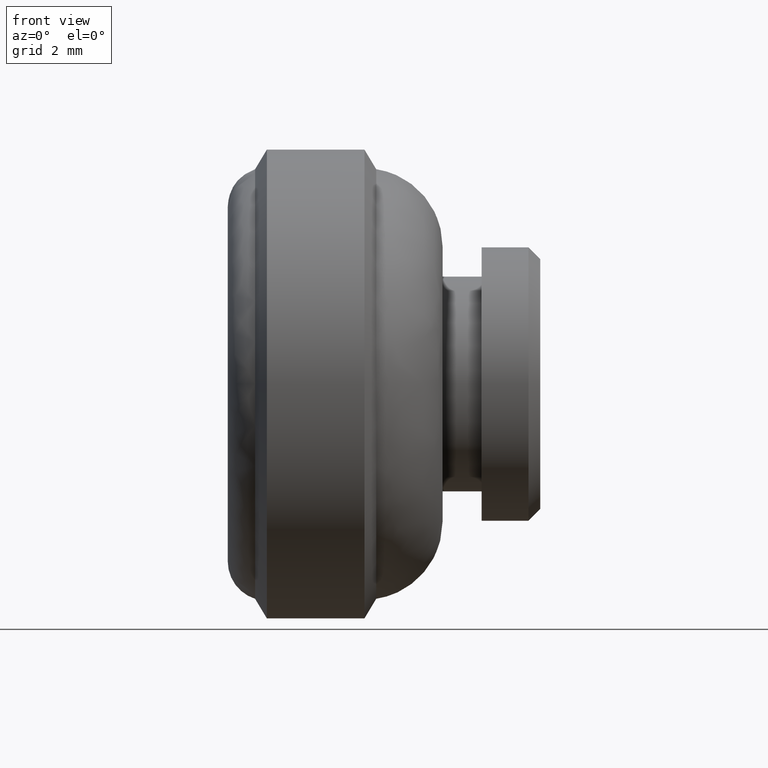
[diagram: clean part render]
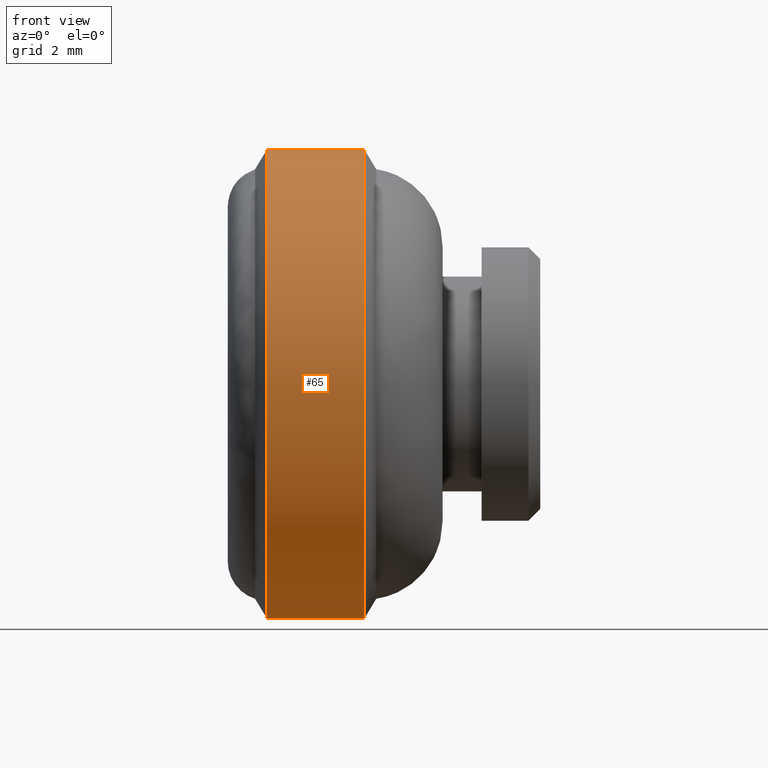
[diagram: same view with one face highlighted and labeled with its STEP entity id]
A machine part, front view. The second image highlights one B-rep face of the part: STEP entity #65.
In plain terms, the highlighted cylindrical surface (partial cylindrical patch) has radius 6 mm, axis along (1, -0, -0).
Its self-contained STEP definition (entity closure, byte-faithful):
#65=ADVANCED_FACE('',(#324),#323,.T.);
#323=CYLINDRICAL_SURFACE('',#606,6.00000000000E+00);
#324=FACE_OUTER_BOUND('',#607,.T.);
#603=CARTESIAN_POINT('',(0.00000000000E+00,0.00000000000E+00,0.00000000000E+00));
#604=DIRECTION('',(1.00000000000E+00,-0.00000000000E+00,-0.00000000000E+00));
#605=DIRECTION('',(0.00000000000E+00,0.00000000000E+00,-1.00000000000E+00));
#606=AXIS2_PLACEMENT_3D('',#603,#604,#605);
#607=EDGE_LOOP('',(#778,#779,#780,#781));
#778=ORIENTED_EDGE('',*,*,#849,.F.);
#779=ORIENTED_EDGE('',*,*,#846,.T.);
#780=ORIENTED_EDGE('',*,*,#842,.T.);
#781=ORIENTED_EDGE('',*,*,#848,.F.);
#842=EDGE_CURVE('',#1147,#1148,#1149,.T.);
#846=EDGE_CURVE('',#1173,#1147,#1174,.T.);
#848=EDGE_CURVE('',#1180,#1148,#1187,.T.);
#849=EDGE_CURVE('',#1173,#1180,#1193,.T.);
#1147=VERTEX_POINT('',#1408);
#1148=VERTEX_POINT('',#1409);
#1149=CIRCLE('',#1413,6.00000000000E+00);
#1173=VERTEX_POINT('',#1422);
#1174=(BOUNDED_CURVE() B_SPLINE_CURVE(1,(#1423,#1424),.UNSPECIFIED.,.F.,.F.) B_SPLINE_CURVE_WITH_KNOTS((2,2),(8.33333233997E-02,9.16666663280E-01),.UNSPECIFIED.) CURVE() GEOMETRIC_REPRESENTATION_ITEM() RATIONAL_B_SPLINE_CURVE((1.00000000000E+00,1.00000000000E+00)) REPRESENTATION_ITEM('') );
#1180=VERTEX_POINT('',#1425);
#1187=(BOUNDED_CURVE() B_SPLINE_CURVE(1,(#1430,#1431),.UNSPECIFIED.,.F.,.F.) B_SPLINE_CURVE_WITH_KNOTS((2,2),(8.33333333333E-02,9.16666666667E-01),.UNSPECIFIED.) CURVE() GEOMETRIC_REPRESENTATION_ITEM() RATIONAL_B_SPLINE_CURVE((7.50000000000E-01,7.50000000000E-01)) REPRESENTATION_ITEM('') );
#1193=CIRCLE('',#1435,6.00000000000E+00);
#1408=CARTESIAN_POINT('',(-4.50000000000E+00,-2.96059473233E-16,-6.00000000000E+00));
#1409=CARTESIAN_POINT('',(-4.50000000000E+00,0.00000000000E+00,6.00000000000E+00));
#1410=CARTESIAN_POINT('',(-4.50000000000E+00,0.00000000000E+00,0.00000000000E+00));
#1411=DIRECTION('',(-1.00000000000E+00,0.00000000000E+00,0.00000000000E+00));
#1412=DIRECTION('',(0.00000000000E+00,-1.22460635382E-16,1.00000000000E+00));
#1413=AXIS2_PLACEMENT_3D('',#1410,#1411,#1412);
#1422=CARTESIAN_POINT('',(-7.00000000000E+00,-2.96059473233E-16,-6.00000000000E+00));
#1423=CARTESIAN_POINT('',(-7.00000002980E+00,0.00000000000E+00,-6.00000000000E+00));
#1424=CARTESIAN_POINT('',(-4.50000001016E+00,0.00000000000E+00,-6.00000000000E+00));
#1425=CARTESIAN_POINT('',(-7.00000000000E+00,0.00000000000E+00,6.00000000000E+00));
#1430=CARTESIAN_POINT('',(-7.00000000000E+00,-2.96059473233E-16,6.00000000000E+00));
#1431=CARTESIAN_POINT('',(-4.50000000000E+00,-2.96059473233E-16,6.00000000000E+00));
#1432=CARTESIAN_POINT('',(-7.00000000000E+00,0.00000000000E+00,0.00000000000E+00));
#1433=DIRECTION('',(-1.00000000000E+00,0.00000000000E+00,0.00000000000E+00));
#1434=DIRECTION('',(0.00000000000E+00,-1.22460635382E-16,1.00000000000E+00));
#1435=AXIS2_PLACEMENT_3D('',#1432,#1433,#1434);